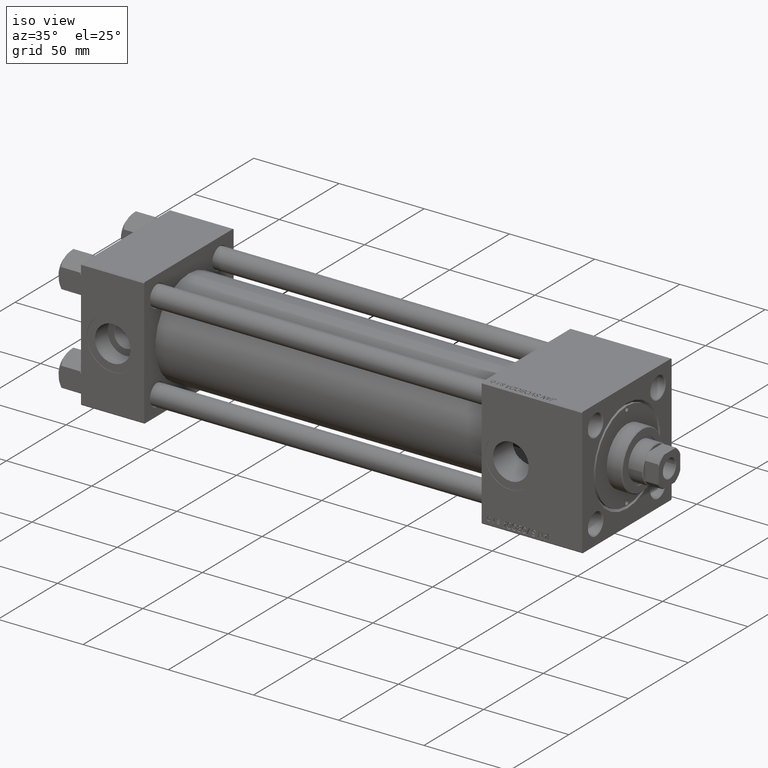
[diagram: clean part render]
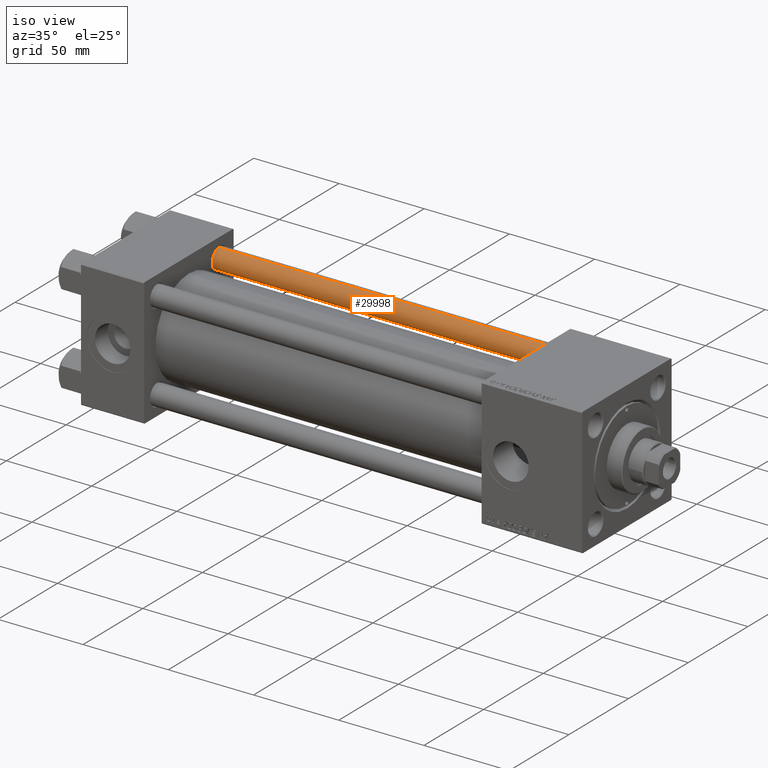
[diagram: same view with one face highlighted and labeled with its STEP entity id]
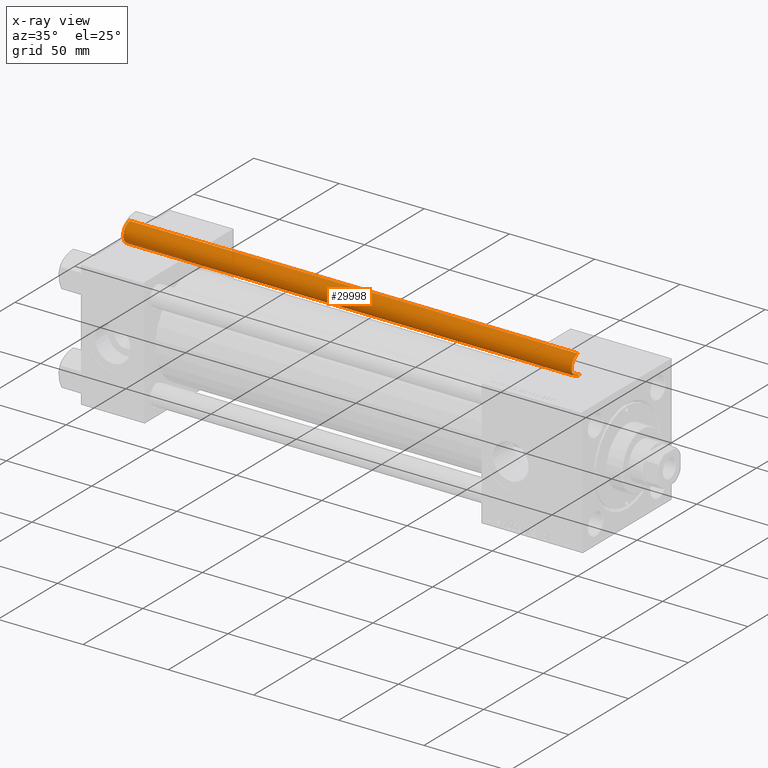
[diagram: x-ray of the same camera — body ghosted, the highlighted face saturated]
A machine part, iso view. The second image highlights one B-rep face of the part: STEP entity #29998.
The next image is the same camera in x-ray: the body ghosted, the highlighted face saturated — about 1% of this face is hidden behind the body in this view.
In plain terms, the highlighted cylindrical surface (edge-blend (fillet) strip) has radius 6 mm, axis along (-1, 0, 0).
Its self-contained STEP definition (entity closure, byte-faithful):
#845 = ORIENTED_EDGE ( 'NONE', *, *, #24599, .T. ) ;
#2308 = VERTEX_POINT ( 'NONE', #34225 ) ;
#2758 = DIRECTION ( 'NONE',  ( -1.000000000000000000, 0.000000000000000000, 0.000000000000000000 ) ) ;
#3513 = LINE ( 'NONE', #49582, #28730 ) ;
#3733 = VERTEX_POINT ( 'NONE', #10102 ) ;
#4212 = LINE ( 'NONE', #14694, #31013 ) ;
#5301 = AXIS2_PLACEMENT_3D ( 'NONE', #29250, #9877, #2758 ) ;
#5458 = ORIENTED_EDGE ( 'NONE', *, *, #40117, .T. ) ;
#6216 = CARTESIAN_POINT ( 'NONE',  ( -6.000000000000000888, 0.000000000000000000, 0.5000000000000559552 ) ) ;
#7502 = ORIENTED_EDGE ( 'NONE', *, *, #32010, .T. ) ;
#9877 = DIRECTION ( 'NONE',  ( -0.000000000000000000, -0.000000000000000000, -1.000000000000000000 ) ) ;
#10102 = CARTESIAN_POINT ( 'NONE',  ( -6.000000000000000888, 0.000000000000000000, 263.5000000000000568 ) ) ;
#10914 = CYLINDRICAL_SURFACE ( 'NONE', #5301, 6.000000000000000888 ) ;
#13709 = FACE_OUTER_BOUND ( 'NONE', #43854, .T. ) ;
#13850 = VERTEX_POINT ( 'NONE', #6216 ) ;
#14310 = AXIS2_PLACEMENT_3D ( 'NONE', #30495, #42944, #38877 ) ;
#14694 = CARTESIAN_POINT ( 'NONE',  ( 6.000000000000000888, 7.347880794884120722E-16, 264.0000000000000000 ) ) ;
#19075 = DIRECTION ( 'NONE',  ( -0.000000000000000000, -0.000000000000000000, -1.000000000000000000 ) ) ;
#19265 = EDGE_CURVE ( 'NONE', #25189, #2308, #4212, .T. ) ;
#19778 = DIRECTION ( 'NONE',  ( -0.000000000000000000, -0.000000000000000000, -1.000000000000000000 ) ) ;
#24599 = EDGE_CURVE ( 'NONE', #3733, #13850, #3513, .T. ) ;
#25189 = VERTEX_POINT ( 'NONE', #38008 ) ;
#28730 = VECTOR ( 'NONE', #19075, 1000.000000000000000 ) ;
#29250 = CARTESIAN_POINT ( 'NONE',  ( 0.000000000000000000, 0.000000000000000000, 264.0000000000000000 ) ) ;
#29998 = ADVANCED_FACE ( 'NONE', ( #13709 ), #10914, .T. ) ;
#30495 = CARTESIAN_POINT ( 'NONE',  ( 0.000000000000000000, 0.000000000000000000, 0.5000000000000559552 ) ) ;
#31013 = VECTOR ( 'NONE', #19778, 1000.000000000000000 ) ;
#32010 = EDGE_CURVE ( 'NONE', #13850, #2308, #36255, .T. ) ;
#34225 = CARTESIAN_POINT ( 'NONE',  ( 6.000000000000000888, 7.347880794884120722E-16, 0.5000000000000559552 ) ) ;
#35646 = DIRECTION ( 'NONE',  ( 0.000000000000000000, 0.000000000000000000, -1.000000000000000000 ) ) ;
#36255 = CIRCLE ( 'NONE', #14310, 6.000000000000000888 ) ;
#38008 = CARTESIAN_POINT ( 'NONE',  ( 6.000000000000000888, 7.347880794884120722E-16, 263.5000000000000568 ) ) ;
#38322 = AXIS2_PLACEMENT_3D ( 'NONE', #39471, #35646, #43523 ) ;
#38877 = DIRECTION ( 'NONE',  ( 1.000000000000000000, 0.000000000000000000, 0.000000000000000000 ) ) ;
#39471 = CARTESIAN_POINT ( 'NONE',  ( 0.000000000000000000, 0.000000000000000000, 263.5000000000000568 ) ) ;
#40117 = EDGE_CURVE ( 'NONE', #25189, #3733, #42402, .T. ) ;
#42402 = CIRCLE ( 'NONE', #38322, 6.000000000000000888 ) ;
#42944 = DIRECTION ( 'NONE',  ( -0.000000000000000000, -0.000000000000000000, 1.000000000000000000 ) ) ;
#43523 = DIRECTION ( 'NONE',  ( 1.000000000000000000, 0.000000000000000000, 0.000000000000000000 ) ) ;
#43718 = ORIENTED_EDGE ( 'NONE', *, *, #19265, .F. ) ;
#43854 = EDGE_LOOP ( 'NONE', ( #43718, #5458, #845, #7502 ) ) ;
#49582 = CARTESIAN_POINT ( 'NONE',  ( -6.000000000000000888, 0.000000000000000000, 264.0000000000000000 ) ) ;